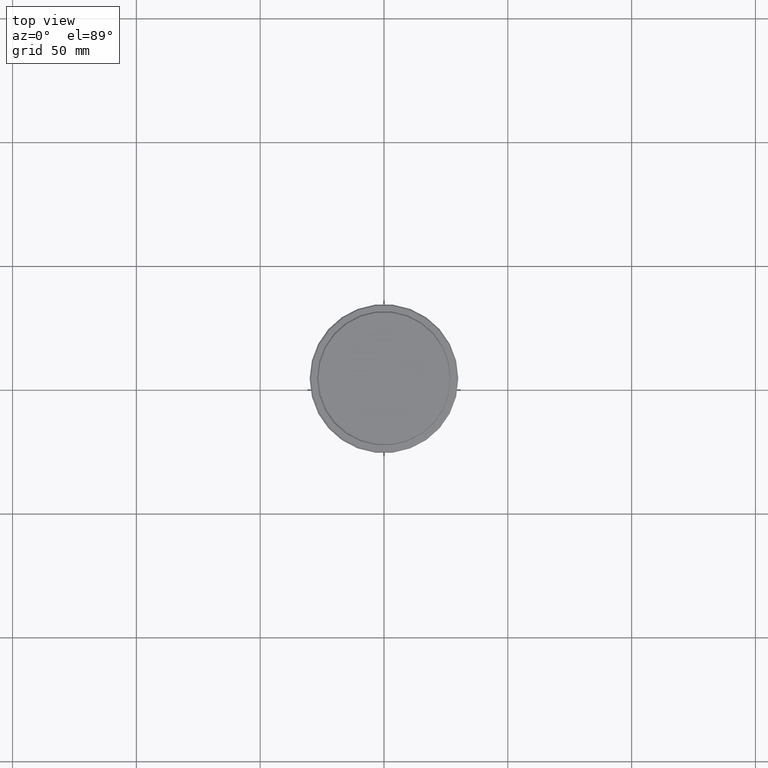
[diagram: clean part render]
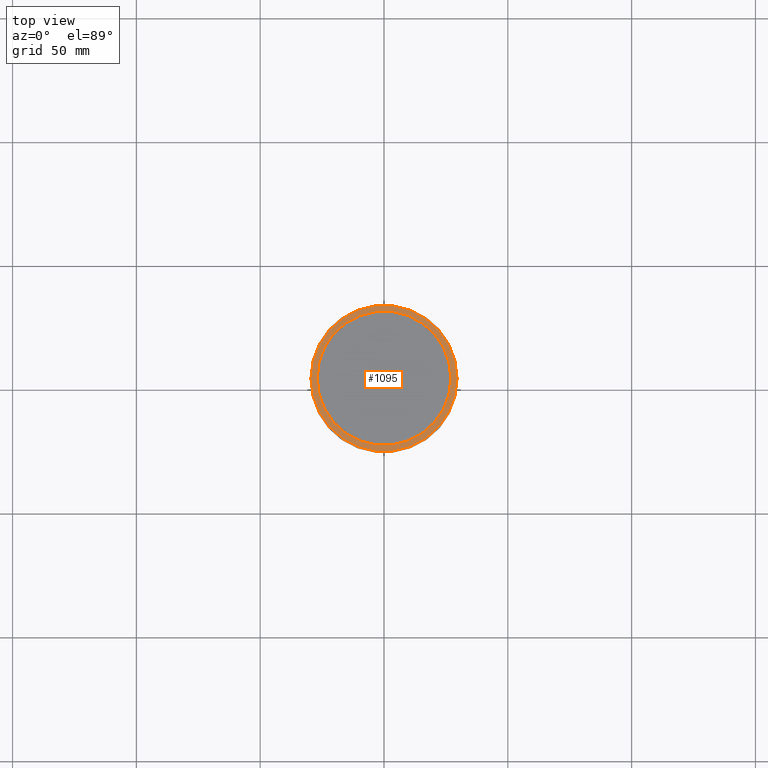
[diagram: same view with one face highlighted and labeled with its STEP entity id]
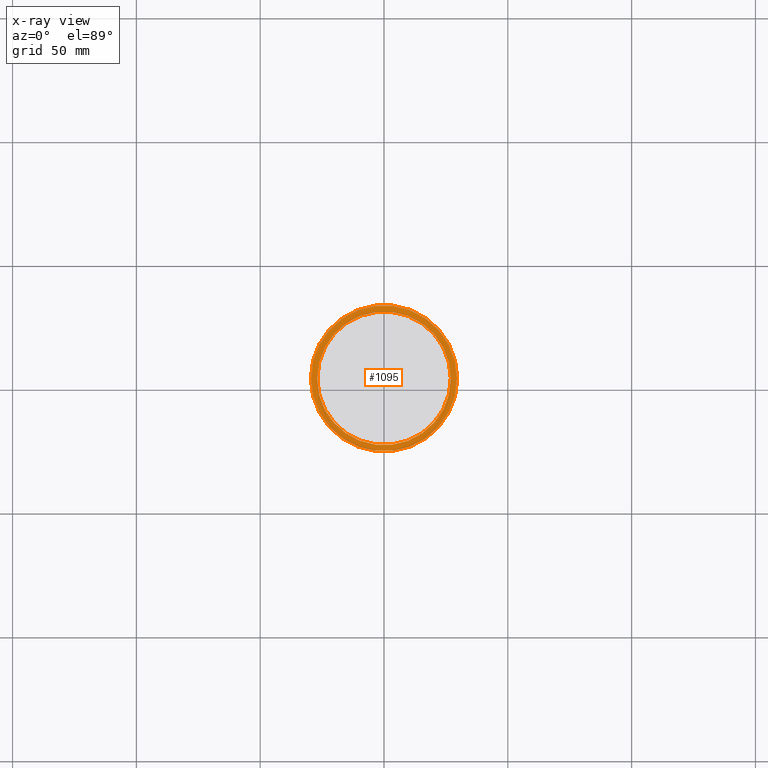
[diagram: x-ray of the same camera — body ghosted, the highlighted face saturated]
A machine part, top view. The second image highlights one B-rep face of the part: STEP entity #1095.
The next image is the same camera in x-ray: the body ghosted, the highlighted face saturated — about 0% of this face is hidden behind the body in this view.
In plain terms, the highlighted planar face has unit normal (0, -0, 1).
Its self-contained STEP definition (entity closure, byte-faithful):
#48 = EDGE_CURVE ( 'NONE', #57, #1209, #1349, .T. ) ;
#57 = VERTEX_POINT ( 'NONE', #954 ) ;
#117 = VERTEX_POINT ( 'NONE', #724 ) ;
#134 = CARTESIAN_POINT ( 'NONE',  ( 29.50000000000000000, 3.643324227463375391E-15, -12.00000000000000178 ) ) ;
#135 = PLANE ( 'NONE',  #1312 ) ;
#173 = DIRECTION ( 'NONE',  ( 0.000000000000000000, 0.000000000000000000, -1.000000000000000000 ) ) ;
#272 = CARTESIAN_POINT ( 'NONE',  ( 0.000000000000000000, 0.000000000000000000, -12.00000000000000178 ) ) ;
#319 = DIRECTION ( 'NONE',  ( -0.000000000000000000, -0.000000000000000000, 1.000000000000000000 ) ) ;
#370 = AXIS2_PLACEMENT_3D ( 'NONE', #1316, #319, #873 ) ;
#412 = CARTESIAN_POINT ( 'NONE',  ( 0.000000000000000000, 0.000000000000000000, -12.00000000000000178 ) ) ;
#497 = EDGE_CURVE ( 'NONE', #1209, #57, #922, .T. ) ;
#514 = CARTESIAN_POINT ( 'NONE',  ( 0.000000000000000000, 0.000000000000000000, -12.00000000000000178 ) ) ;
#519 = DIRECTION ( 'NONE',  ( 0.000000000000000000, 0.000000000000000000, -1.000000000000000000 ) ) ;
#664 = CIRCLE ( 'NONE', #1040, 29.50000000000000000 ) ;
#719 = DIRECTION ( 'NONE',  ( 1.000000000000000000, 0.000000000000000000, 0.000000000000000000 ) ) ;
#724 = CARTESIAN_POINT ( 'NONE',  ( -29.50000000000000000, 0.000000000000000000, -12.00000000000000178 ) ) ;
#745 = VERTEX_POINT ( 'NONE', #134 ) ;
#793 = CARTESIAN_POINT ( 'NONE',  ( 0.000000000000000000, 26.49999999999999645, -12.00000000000000178 ) ) ;
#801 = DIRECTION ( 'NONE',  ( 0.000000000000000000, -0.000000000000000000, 1.000000000000000000 ) ) ;
#846 = DIRECTION ( 'NONE',  ( 1.000000000000000000, 0.000000000000000000, 0.000000000000000000 ) ) ;
#873 = DIRECTION ( 'NONE',  ( 1.000000000000000000, 0.000000000000000000, 0.000000000000000000 ) ) ;
#897 = FACE_OUTER_BOUND ( 'NONE', #1156, .T. ) ;
#901 = EDGE_CURVE ( 'NONE', #117, #745, #664, .T. ) ;
#919 = FACE_BOUND ( 'NONE', #1085, .T. ) ;
#922 = CIRCLE ( 'NONE', #1200, 26.99999999999999289 ) ;
#953 = DIRECTION ( 'NONE',  ( 1.000000000000000000, 0.000000000000000000, 0.000000000000000000 ) ) ;
#954 = CARTESIAN_POINT ( 'NONE',  ( 26.99999999999999289, 0.000000000000000000, -12.00000000000000178 ) ) ;
#1009 = DIRECTION ( 'NONE',  ( 1.000000000000000000, 0.000000000000000000, 0.000000000000000000 ) ) ;
#1037 = AXIS2_PLACEMENT_3D ( 'NONE', #514, #519, #846 ) ;
#1040 = AXIS2_PLACEMENT_3D ( 'NONE', #272, #1381, #719 ) ;
#1053 = ORIENTED_EDGE ( 'NONE', *, *, #48, .T. ) ;
#1085 = EDGE_LOOP ( 'NONE', ( #1053, #1111 ) ) ;
#1095 = ADVANCED_FACE ( 'NONE', ( #897, #919 ), #135, .T. ) ;
#1111 = ORIENTED_EDGE ( 'NONE', *, *, #497, .T. ) ;
#1156 = EDGE_LOOP ( 'NONE', ( #1301, #1346 ) ) ;
#1200 = AXIS2_PLACEMENT_3D ( 'NONE', #412, #173, #953 ) ;
#1209 = VERTEX_POINT ( 'NONE', #1382 ) ;
#1301 = ORIENTED_EDGE ( 'NONE', *, *, #901, .T. ) ;
#1312 = AXIS2_PLACEMENT_3D ( 'NONE', #793, #801, #1009 ) ;
#1316 = CARTESIAN_POINT ( 'NONE',  ( 0.000000000000000000, 0.000000000000000000, -12.00000000000000178 ) ) ;
#1333 = CIRCLE ( 'NONE', #370, 29.50000000000000000 ) ;
#1346 = ORIENTED_EDGE ( 'NONE', *, *, #1386, .T. ) ;
#1349 = CIRCLE ( 'NONE', #1037, 26.99999999999999289 ) ;
#1381 = DIRECTION ( 'NONE',  ( -0.000000000000000000, -0.000000000000000000, 1.000000000000000000 ) ) ;
#1382 = CARTESIAN_POINT ( 'NONE',  ( -26.99999999999999289, 3.306546357697852944E-15, -12.00000000000000178 ) ) ;
#1386 = EDGE_CURVE ( 'NONE', #745, #117, #1333, .T. ) ;